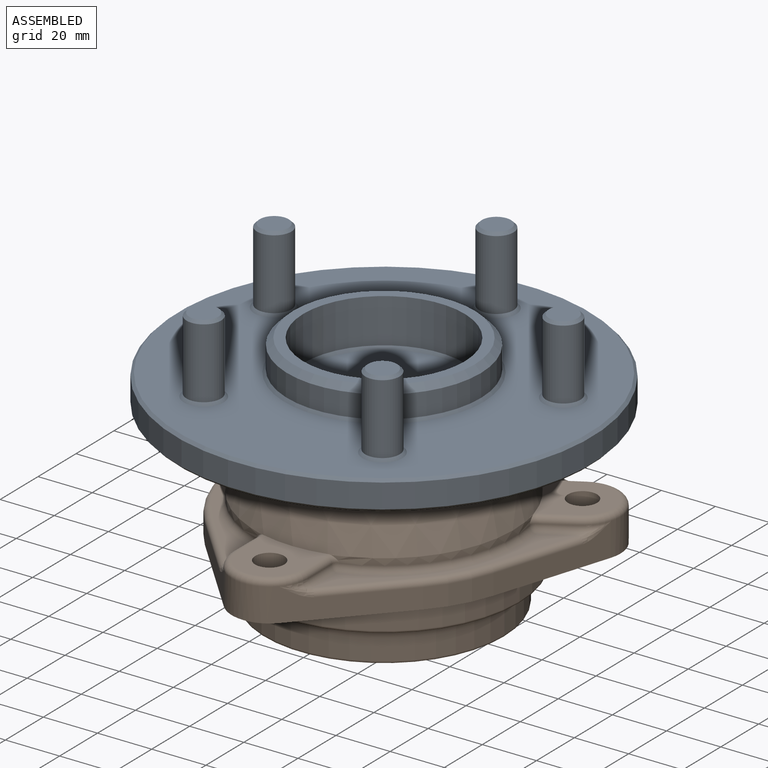
[diagram: assembled view]
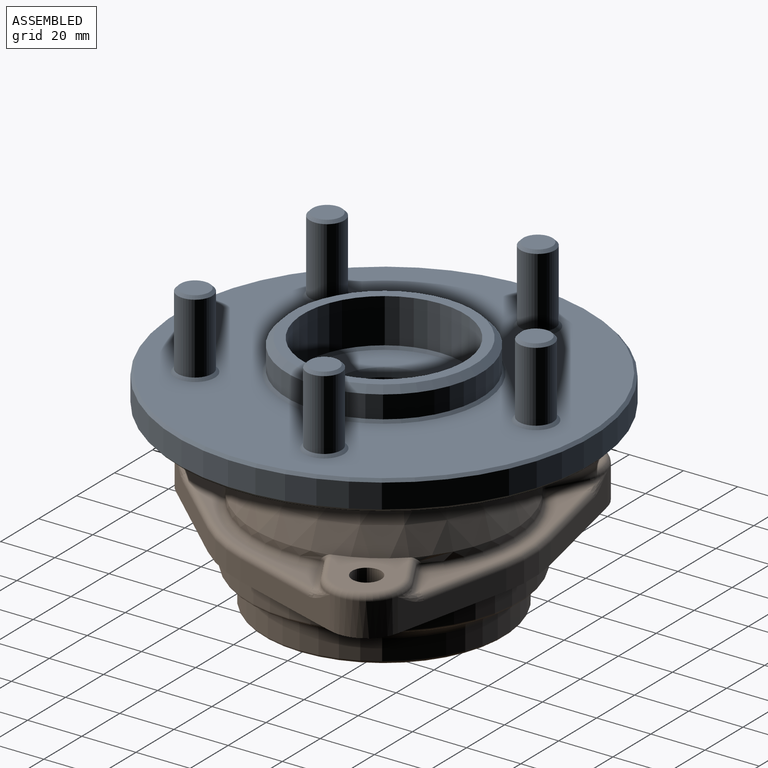
[diagram: assembled view, second angle]
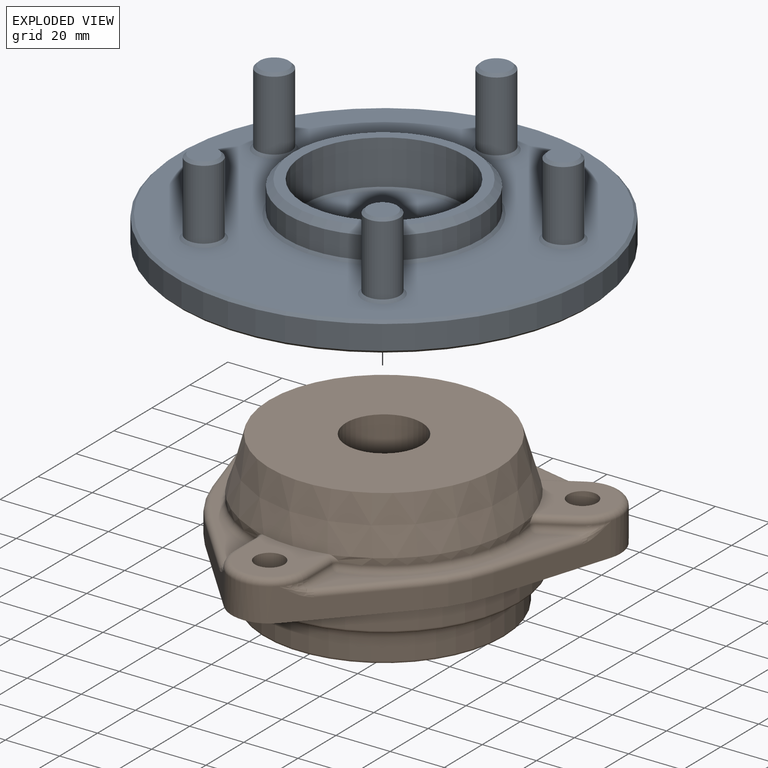
[diagram: exploded view]
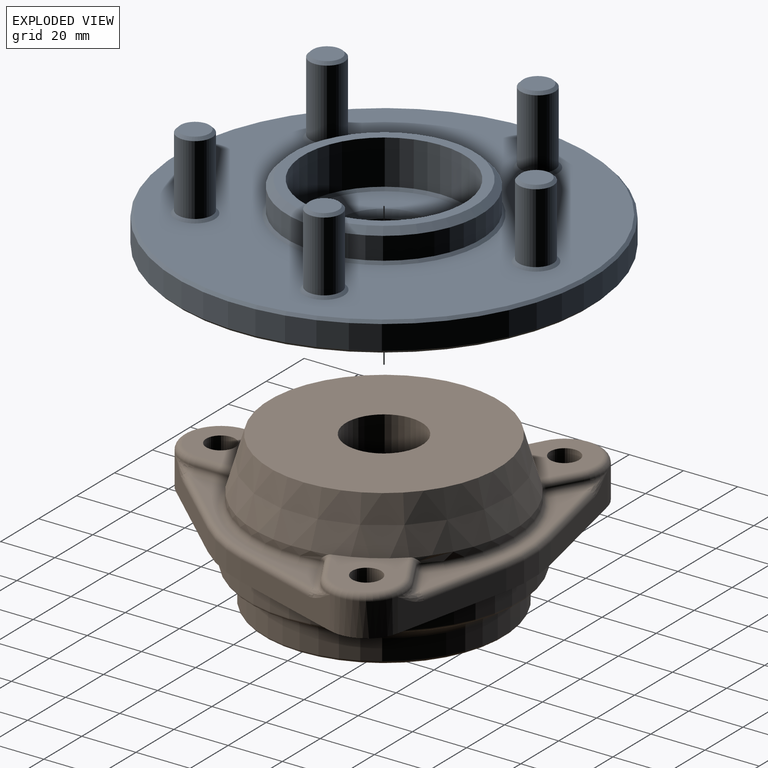
[diagram: exploded view, second angle]
ASSEMBLY  parts=2 mates=2
PART A: 38 faces, bbox 153.4x153.4x48.5 mm
  f0: cylinder r=76.68mm len=153.37mm, axis (0,0,1), area 4320.9mm2, adj f32,f33
  f1: plane 151.33x151.33mm, normal (0,0,-1), area 10708.5mm2, adj f32,f36
  f2: plane 151.33x151.33mm, normal (0,0,1), area 12888mm2, adj f20,f21,f22,f23,f24,f30,f33
  f3: cylinder r=43.36mm len=86.72mm, axis (0,0,1), area 1017.2mm2, adj f36,f37
  f4: plane 84.68x84.68mm, normal (0,0,-1), area 5016.6mm2, adj f9,f37
  f5: cylinder r=35.75mm len=71.5mm, axis (0,0,-1), area 1863.9mm2, adj f30,f31
  f6: plane 66.93x66.93mm, normal (0,0,1), area 737.6mm2, adj f7,f31
  f7: cylinder r=29.75mm len=59.5mm, axis (0,0,1), area 3070.1mm2, adj f6,f34
  f8: plane 57.47x57.47mm, normal (0,0,1), area 1760.6mm2, adj f34,f35
  f9: cylinder r=14mm len=28mm, axis (0,0,1), area 1090.7mm2, adj f4,f35
  f10: cylinder r=6.35mm len=25.97mm, axis (0,0,-1), area 1036.1mm2, adj f21,f29
  f11: plane 10.67x10.67mm, normal (0,0,1), area 89.4mm2, adj f29
  f12: cylinder r=6.35mm len=25.97mm, axis (0,0,-1), area 1036.1mm2, adj f20,f25
  f13: plane 10.67x10.67mm, normal (0,0,1), area 89.4mm2, adj f25
  f14: cylinder r=6.35mm len=25.97mm, axis (0,0,-1), area 1036.1mm2, adj f24,f26
  f15: plane 10.67x10.67mm, normal (0,0,1), area 89.4mm2, adj f26
  f16: cylinder r=6.35mm len=25.97mm, axis (0,0,-1), area 1036.1mm2, adj f23,f27
  f17: plane 10.67x10.67mm, normal (0,0,1), area 89.4mm2, adj f27
  f18: cylinder r=6.35mm len=25.97mm, axis (0,0,-1), area 1036.1mm2, adj f22,f28
  f19: plane 10.67x10.67mm, normal (0,0,1), area 89.4mm2, adj f28
  f20: cone r=6.35mm half-angle=45deg, axis (0,0,-1), area 61.9mm2, adj f2,f12
  f21: cone r=6.35mm half-angle=45deg, axis (0,0,-1), area 61.9mm2, adj f2,f10
  f22: cone r=6.35mm half-angle=45deg, axis (0,0,-1), area 61.9mm2, adj f2,f18
  f23: cone r=6.35mm half-angle=45deg, axis (0,0,-1), area 61.9mm2, adj f2,f16
  f24: cone r=6.35mm half-angle=45deg, axis (0,0,-1), area 61.9mm2, adj f2,f14
  f25: cone r=5.33mm half-angle=45deg, axis (0,0,-1), area 52.7mm2, adj f12,f13
  f26: cone r=5.33mm half-angle=45deg, axis (0,0,-1), area 52.7mm2, adj f14,f15
  f27: cone r=5.33mm half-angle=45deg, axis (0,0,-1), area 52.7mm2, adj f16,f17
  f28: cone r=5.33mm half-angle=45deg, axis (0,0,-1), area 52.7mm2, adj f18,f19
  f29: cone r=5.33mm half-angle=45deg, axis (0,0,-1), area 52.7mm2, adj f10,f11
  f30: cone r=35.75mm half-angle=45deg, axis (0,0,-1), area 327.3mm2, adj f2,f5
  f31: cone r=33.46mm half-angle=45deg, axis (0,0,-1), area 703mm2, adj f5,f6
  f32: cone r=76.68mm half-angle=45deg, axis (0,0,1), area 687.7mm2, adj f0,f1
  f33: cone r=75.67mm half-angle=45deg, axis (0,0,-1), area 687.7mm2, adj f0,f2
  f34: cone r=28.73mm half-angle=45deg, axis (0,0,1), area 264mm2, adj f7,f8
  f35: cone r=14mm half-angle=45deg, axis (0,0,1), area 307.6mm2, adj f8,f9
  f36: torus R=48.13mm, axis (0,0,1), area 2125.2mm2, adj f1,f3
  f37: cone r=42.34mm half-angle=45deg, axis (0,0,1), area 386.8mm2, adj f3,f4
PART B: 109 faces, bbox 138.3x134.9x56.5 mm
  f0: cylinder r=14mm len=46.86mm, axis (0,0,-1), area 4122.3mm2, adj f3,f107
  f1: plane 29.48x28.77mm, normal (0,0,1), area 421.8mm2, adj f4,f66,f67,f68,f69,f70,f102
  f2: plane 25.41x23.62mm, normal (0,0,1), area 421.8mm2, adj f4,f76,f77,f78,f79,f80,f104
  f3: plane 84.68x84.68mm, normal (0,0,1), area 5016.6mm2, adj f0,f4
  f4: cone r=42.34mm half-angle=16.5deg, axis (0,0,-1), area 5661.8mm2, adj f1,f2,f3,f18,f28,f32,f37
  f5: plane 33.26x30.42mm, normal (-0.74,-0.67,0), area 352.4mm2, adj f6,f16,f17,f99,f100,f101
  f6: cylinder r=54.61mm len=20.33mm, axis (0,0,1), area 177.3mm2, adj f5,f7,f17,f98
  f7: plane 42.62x13.66mm, normal (-0.95,-0.3,0), area 352.4mm2, adj f6,f8,f17,f95,f96,f97
  f8: cylinder r=13.97mm len=26.24mm, axis (0,0,1), area 291.2mm2, adj f7,f9,f17,f33,f36,f47,f56,f73
  f9: plane 43.45x12.07mm, normal (-0.21,0.98,0), area 352.4mm2, adj f8,f10,f17,f92,f93,f94
  f10: cylinder r=54.61mm len=23.47mm, axis (0,0,1), area 177.3mm2, adj f9,f11,f17,f91
  f11: plane 43.45x12.07mm, normal (0.21,0.98,0), area 352.4mm2, adj f10,f12,f17,f88,f89,f90
  f12: cylinder r=13.97mm len=26.07mm, axis (0,0,1), area 291.1mm2, adj f11,f13,f17,f27,f35,f39,f63,f68
  f13: plane 42.41x13.44mm, normal (0.95,-0.3,0), area 352.4mm2, adj f12,f14,f17,f85,f86,f87
  f14: cylinder r=54.61mm len=20.33mm, axis (0,0,1), area 177.3mm2, adj f13,f15,f17,f84
  f15: plane 33.26x30.42mm, normal (0.74,-0.67,0), area 352.4mm2, adj f14,f16,f17,f81,f82,f83
  f16: cylinder r=13.97mm len=27.94mm, axis (0,0,1), area 291.1mm2, adj f5,f15,f17,f29,f31,f48,f57,f78
  f17: plane 132.31x128.84mm, normal (0,0,-1), area 3118.4mm2, adj f5,f6,f7,f8,f9,f10,f11,f12
  f18: plane 29.48x28.48mm, normal (0,0,1), area 419.6mm2, adj f4,f71,f72,f73,f74,f75,f103
  f19: cylinder r=50.04mm len=100.08mm, axis (0,0,1), area 2395.7mm2, adj f25,f26
  f20: plane 98.04x98.04mm, normal (0,0,-1), area 155.7mm2, adj f23,f26
  f21: cylinder r=44.45mm len=88.9mm, axis (0,0,1), area 2128.2mm2, adj f23,f24
  f22: plane 86.87x86.87mm, normal (0,0,-1), area 4771.3mm2, adj f24,f108
  f23: torus R=48.51mm, axis (0,0,-1), area 1842.1mm2, adj f20,f21
  f24: torus R=43.43mm, axis (0,0,-1), area 442mm2, adj f21,f22
  f25: torus R=51.05mm, axis (0,0,-1), area 505.5mm2, adj f17,f19
  f26: torus R=49.02mm, axis (0,0,-1), area 498.1mm2, adj f19,f20
  f27: plane 10.97x6.33mm, normal (0.5,-0.87,0), area 3.2mm2, adj f12,f62,f65,f67
  f28: cylinder r=48.01mm len=59.57mm, axis (0,0,1), area 181.2mm2, adj f4,f59,f61,f62,f66,f80
  f29: plane 12.67x0.25mm, normal (1,0,0), area 3.2mm2, adj f16,f58,f59,f79
  f30: plane 75.6x43.65mm, normal (0,0,1), area 314.6mm2, adj f58,f61,f65,f83,f84,f85
  f31: plane 12.67x0.25mm, normal (-1,0,0), area 3.2mm2, adj f16,f49,f50,f77
  f32: cylinder r=48.01mm len=59.86mm, axis (0,0,1), area 182mm2, adj f4,f49,f52,f53,f75,f76
  f33: plane 10.68x5.82mm, normal (-0.48,-0.88,0), area 3.1mm2, adj f8,f52,f55,f74
  f34: plane 75.61x43.65mm, normal (0,0,1), area 316.5mm2, adj f50,f53,f55,f97,f98,f99
  f35: plane 10.97x6.33mm, normal (-0.5,0.87,0), area 3.2mm2, adj f12,f40,f41,f69
  f36: plane 10.97x6.33mm, normal (0.5,0.87,0), area 3.2mm2, adj f8,f44,f46,f72
  f37: cylinder r=48.01mm len=68.79mm, axis (0,0,1), area 181.2mm2, adj f4,f41,f43,f44,f70,f71
  f38: plane 87.3x14.45mm, normal (0,0,1), area 314.6mm2, adj f40,f43,f46,f90,f91,f92
  f39: torus R=16.26mm, axis (0,0,1), area 17.9mm2, adj f12,f40,f88
  f40: cylinder r=2.29mm len=12.11mm, axis (0.87,0.5,0), area 45.4mm2, adj f35,f38,f39,f42,f89
  f41: cylinder r=2.29mm len=2.65mm, axis (0,0,1), area 0.7mm2, adj f35,f37,f42,f70
  f42: sphere r=2.29mm, area 6.5mm2, adj f40,f41,f43
  f43: torus R=50.29mm, axis (0,0,1), area 251.8mm2, adj f37,f38,f42,f45
  f44: cylinder r=2.29mm len=2.65mm, axis (0,0,1), area 0.7mm2, adj f36,f37,f45,f71
  f45: sphere r=2.29mm, area 6.5mm2, adj f43,f44,f46
  f46: cylinder r=2.29mm len=12.11mm, axis (0.87,-0.5,0), area 45.4mm2, adj f36,f38,f45,f47,f93
  f47: torus R=16.26mm, axis (0,0,1), area 17.9mm2, adj f8,f46,f94
  f48: torus R=16.26mm, axis (0,0,1), area 17.9mm2, adj f16,f50,f101
  f49: cylinder r=2.29mm len=2.16mm, axis (0,0,1), area 0.7mm2, adj f31,f32,f51,f76
  f50: cylinder r=2.29mm len=12.67mm, axis (0,1,0), area 45.4mm2, adj f31,f34,f48,f51,f100
  f51: sphere r=2.29mm, area 6.5mm2, adj f49,f50,f53
  f52: cylinder r=2.29mm len=2.46mm, axis (0,0,1), area 0.7mm2, adj f32,f33,f54,f75
  f53: torus R=50.29mm, axis (0,0,1), area 253mm2, adj f32,f34,f51,f54
  f54: sphere r=2.29mm, area 6.3mm2, adj f52,f53,f55
  f55: cylinder r=2.29mm len=11.78mm, axis (-0.88,0.48,0), area 43.7mm2, adj f33,f34,f54,f56,f96
  f56: torus R=16.26mm, axis (0,0,1), area 17.1mm2, adj f8,f55,f95
  f57: torus R=16.26mm, axis (0,0,1), area 17.9mm2, adj f16,f58,f81
  f58: cylinder r=2.29mm len=12.67mm, axis (0,-1,0), area 45.4mm2, adj f29,f30,f57,f60,f82
  f59: cylinder r=2.29mm len=2.16mm, axis (0,0,1), area 0.7mm2, adj f28,f29,f60,f80
  f60: sphere r=2.29mm, area 6.5mm2, adj f58,f59,f61
  f61: torus R=50.29mm, axis (0,0,1), area 251.8mm2, adj f28,f30,f60,f64
  f62: cylinder r=2.29mm len=2.42mm, axis (0,0,1), area 0.7mm2, adj f27,f28,f64,f66
  f63: torus R=16.26mm, axis (0,0,1), area 17.9mm2, adj f12,f65,f87
  f64: sphere r=2.29mm, area 6.5mm2, adj f61,f62,f65
  f65: cylinder r=2.29mm len=12.11mm, axis (-0.87,-0.5,0), area 45.4mm2, adj f27,f30,f63,f64,f86
  f66: torus R=4.57mm, axis (0,0,-1), area 7.5mm2, adj f1,f28,f62,f67
  f67: cylinder r=2.29mm len=12.11mm, axis (-0.87,-0.5,0), area 45.5mm2, adj f1,f27,f66,f68
  f68: torus R=11.68mm, axis (0,0,-1), area 148.2mm2, adj f1,f12,f67,f69
  f69: cylinder r=2.29mm len=12.11mm, axis (0.87,0.5,0), area 45.5mm2, adj f1,f35,f68,f70
  f70: torus R=4.57mm, axis (0,0,-1), area 7.5mm2, adj f1,f37,f41,f69
  f71: torus R=4.57mm, axis (0,0,-1), area 7.5mm2, adj f18,f37,f44,f72
  f72: cylinder r=2.29mm len=12.11mm, axis (0.87,-0.5,0), area 45.5mm2, adj f18,f36,f71,f73
  f73: torus R=11.68mm, axis (0,0,-1), area 149.4mm2, adj f8,f18,f72,f74
  f74: cylinder r=2.29mm len=11.78mm, axis (-0.88,0.48,0), area 43.7mm2, adj f18,f33,f73,f75
  f75: torus R=4.57mm, axis (0,0,-1), area 7.9mm2, adj f18,f32,f52,f74
  f76: torus R=4.57mm, axis (0,0,-1), area 7.5mm2, adj f2,f32,f49,f77
  f77: cylinder r=2.29mm len=12.67mm, axis (0,1,0), area 45.5mm2, adj f2,f31,f76,f78
  f78: torus R=11.68mm, axis (0,0,-1), area 148.2mm2, adj f2,f16,f77,f79
  f79: cylinder r=2.29mm len=12.67mm, axis (0,-1,0), area 45.5mm2, adj f2,f29,f78,f80
  f80: torus R=4.57mm, axis (0,0,-1), area 7.5mm2, adj f2,f28,f59,f79
  f81: bspline ~9.83x7.57mm, area 17.8mm2, adj f15,f57,f82
  f82: bspline ~3.28x2.88mm, area 1.9mm2, adj f15,f58,f81,f83
  f83: cylinder r=2.29mm len=26.04mm, axis (0.67,0.74,0), area 119.1mm2, adj f15,f30,f82,f84
  f84: torus R=52.32mm, axis (0,0,1), area 83.7mm2, adj f14,f30,f83,f85
  f85: cylinder r=2.29mm len=32.32mm, axis (0.3,0.95,0), area 119.1mm2, adj f13,f30,f84,f86
  f86: bspline ~3.09x2.63mm, area 1.9mm2, adj f13,f65,f85,f87
  f87: bspline ~10.72x5.56mm, area 19.4mm2, adj f13,f63,f86
  f88: bspline ~11.47x4.58mm, area 19.4mm2, adj f11,f39,f89
  f89: bspline ~2.35x2.32mm, area 1.9mm2, adj f11,f40,f88,f90
  f90: cylinder r=2.29mm len=32.89mm, axis (-0.98,0.21,0), area 119.1mm2, adj f11,f38,f89,f91
  f91: torus R=52.32mm, axis (0,0,1), area 83.7mm2, adj f10,f38,f90,f92
  f92: cylinder r=2.29mm len=32.89mm, axis (-0.98,-0.21,0), area 119.1mm2, adj f9,f38,f91,f93
  f93: bspline ~2.35x2.32mm, area 1.9mm2, adj f9,f46,f92,f94
  f94: bspline ~11.47x4.58mm, area 19.4mm2, adj f9,f47,f93
  f95: bspline ~11.77x6.07mm, area 20.1mm2, adj f7,f56,f96
  f96: bspline ~2.29x2.21mm, area 0.3mm2, adj f7,f55,f95,f97
  f97: cylinder r=2.29mm len=32.33mm, axis (0.3,-0.95,0), area 119.2mm2, adj f7,f34,f96,f98
  f98: torus R=52.32mm, axis (0,0,1), area 83.7mm2, adj f6,f34,f97,f99
  f99: cylinder r=2.29mm len=26.04mm, axis (0.67,-0.74,0), area 119.1mm2, adj f5,f34,f98,f100
  f100: bspline ~2.3x2.01mm, area 1.9mm2, adj f5,f50,f99,f101
  f101: bspline ~9.83x7.57mm, area 17.8mm2, adj f5,f48,f100
  f102: cylinder r=5.36mm len=14.61mm, axis (0,0,-1), area 491.7mm2, adj f1,f17
  f103: cylinder r=5.36mm len=14.61mm, axis (0,0,-1), area 491.7mm2, adj f17,f18
  f104: cylinder r=5.36mm len=14.61mm, axis (0,0,-1), area 491.7mm2, adj f2,f17
  f105: plane 31.75x31.75mm, normal (0,0,-1), area 27.2mm2, adj f106,f107
  f106: cylinder r=15.88mm len=31.75mm, axis (0,0,-1), area 430.7mm2, adj f105,f108
  f107: cone r=15.6mm half-angle=45deg, axis (0,0,-1), area 210.4mm2, adj f0,f105
  f108: cone r=15.88mm half-angle=45deg, axis (0,0,-1), area 514.2mm2, adj f22,f106
PLACE A rot(axis=(0,0,-1),145.5deg) t=(96.41,-40.98,66.26)mm
PLACE B t=(96.41,-40.98,66.26)mm fixed
MATE cylindrical A.f0 <-> B.f0  axis (0,0,1) through (96.41,-40.98,60.76)mm
MATE planar A.f3 <-> B.f0  axis (0,0,-1) through (96.41,-40.98,45.74)mm
